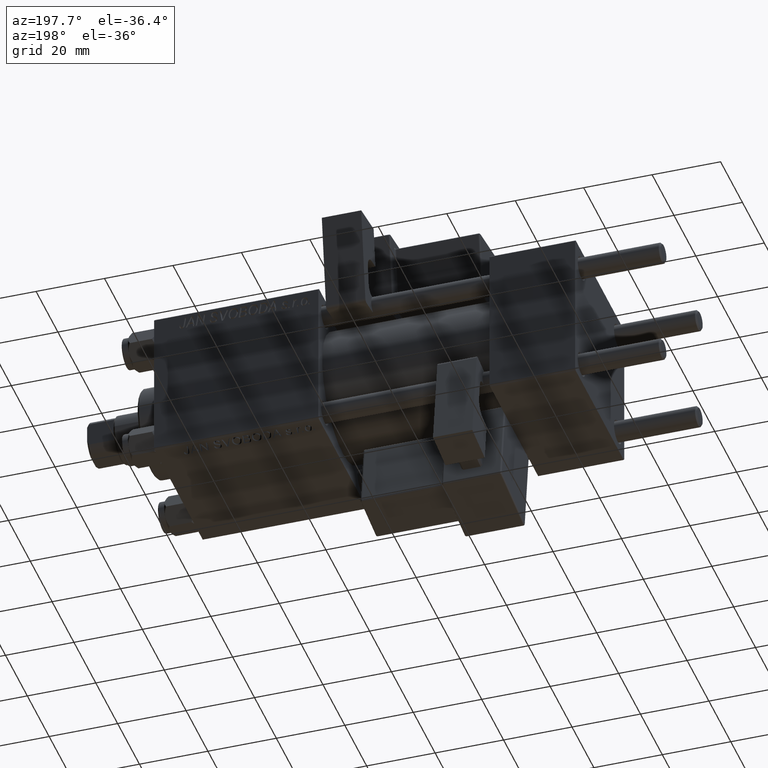
[diagram: clean part render]
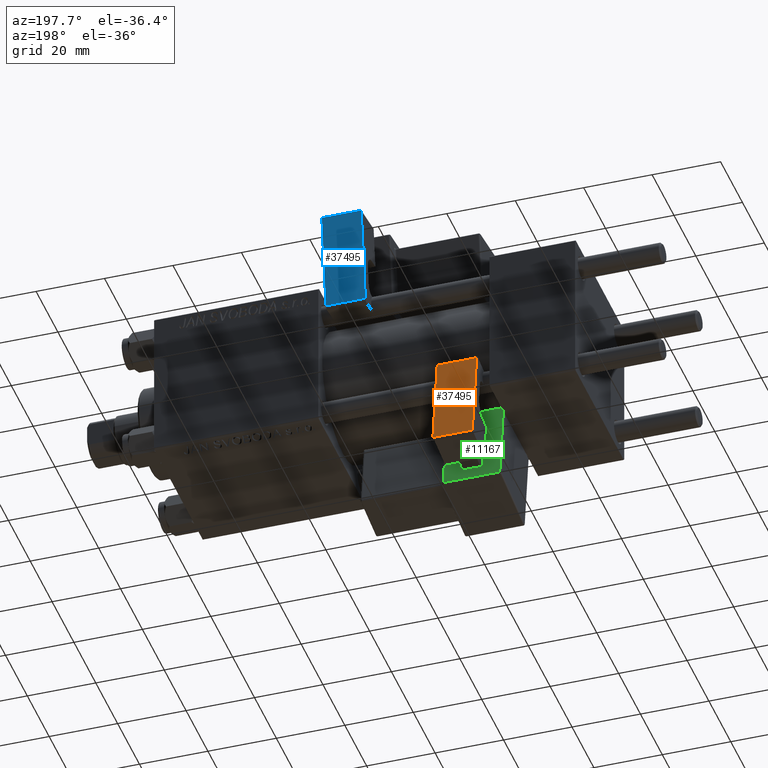
[diagram: same view with three faces highlighted in distinct colors, each labeled with its STEP entity id]
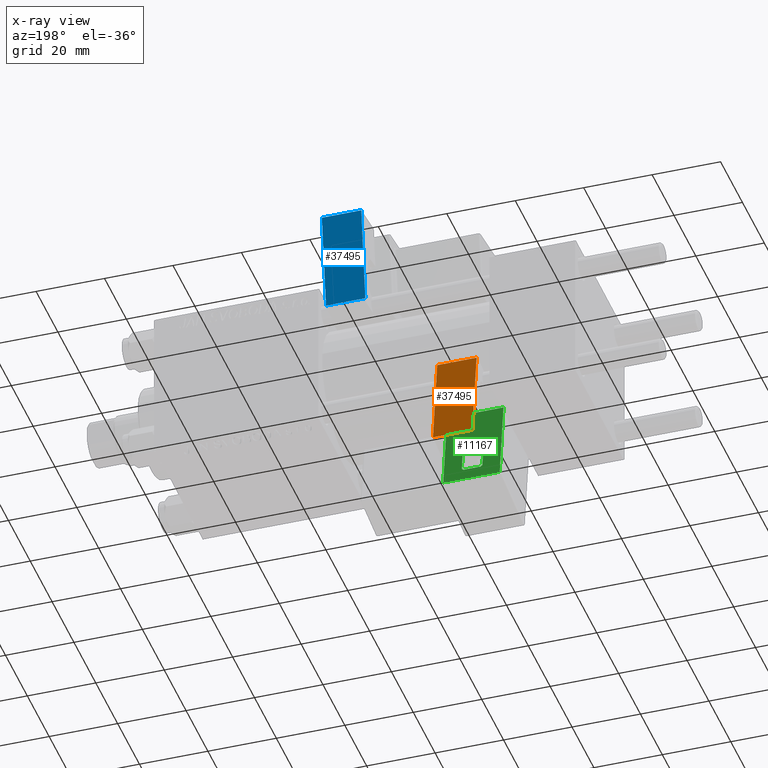
[diagram: x-ray of the same camera — body ghosted, the three highlighted faces saturated]
A machine part, auxiliary view with three faces highlighted in distinct colors.
The next image is the same camera in x-ray (body ghosted, the three faces saturated) — at least one of them is partly hidden behind the body in this view.
Their STEP definitions:

[orange] entity #37495 — the highlighted planar face has unit normal (0, -0.9902, -0.1399).
#1317 = CARTESIAN_POINT ( 'NONE',  ( 5.750000000000000000, 5.750000000000001776, 0.000000000000000000 ) ) ;
#1498 = VECTOR ( 'NONE', #3507, 1000.000000000000000 ) ;
#1606 = FACE_OUTER_BOUND ( 'NONE', #32012, .T. ) ;
#3507 = DIRECTION ( 'NONE',  ( -0.000000000000000000, -0.000000000000000000, -1.000000000000000000 ) ) ;
#4142 = AXIS2_PLACEMENT_3D ( 'NONE', #21463, #13273, #17498 ) ;
#7374 = CARTESIAN_POINT ( 'NONE',  ( 5.750000000000000000, 5.750000000000001776, 28.00000000000000000 ) ) ;
#8340 = VECTOR ( 'NONE', #41812, 1000.000000000000000 ) ;
#9766 = VERTEX_POINT ( 'NONE', #1317 ) ;
#11489 = LINE ( 'NONE', #40793, #49110 ) ;
#12340 = ORIENTED_EDGE ( 'NONE', *, *, #31610, .T. ) ;
#12569 = EDGE_CURVE ( 'NONE', #28521, #44393, #15475, .T. ) ;
#13273 = DIRECTION ( 'NONE',  ( 1.508455196501571183E-16, -1.000000000000000000, 0.000000000000000000 ) ) ;
#15475 = LINE ( 'NONE', #51432, #25259 ) ;
#17498 = DIRECTION ( 'NONE',  ( 1.000000000000000000, 1.508455196501571183E-16, 0.000000000000000000 ) ) ;
#18615 = CARTESIAN_POINT ( 'NONE',  ( -5.750000000000000000, 5.750000000000000000, 28.00000000000000000 ) ) ;
#21463 = CARTESIAN_POINT ( 'NONE',  ( -5.750000000000000000, 5.750000000000000000, 12.00000000000000000 ) ) ;
#22501 = PLANE ( 'NONE',  #4142 ) ;
#25259 = VECTOR ( 'NONE', #38716, 1000.000000000000000 ) ;
#27845 = LINE ( 'NONE', #51904, #1498 ) ;
#28521 = VERTEX_POINT ( 'NONE', #18615 ) ;
#30647 = CARTESIAN_POINT ( 'NONE',  ( -5.750000000000000000, 5.750000000000000000, 0.000000000000000000 ) ) ;
#31610 = EDGE_CURVE ( 'NONE', #44393, #9766, #27845, .T. ) ;
#31723 = ORIENTED_EDGE ( 'NONE', *, *, #48691, .F. ) ;
#32012 = EDGE_LOOP ( 'NONE', ( #31723, #34811, #12340, #49410 ) ) ;
#33094 = LINE ( 'NONE', #49244, #8340 ) ;
#34811 = ORIENTED_EDGE ( 'NONE', *, *, #12569, .T. ) ;
#37495 = ADVANCED_FACE ( 'NONE', ( #1606 ), #22501, .F. ) ;
#38716 = DIRECTION ( 'NONE',  ( 1.000000000000000000, 1.508455196501571183E-16, -0.000000000000000000 ) ) ;
#40017 = DIRECTION ( 'NONE',  ( -0.000000000000000000, -0.000000000000000000, -1.000000000000000000 ) ) ;
#40793 = CARTESIAN_POINT ( 'NONE',  ( -5.750000000000000000, 5.750000000000000000, 12.00000000000000000 ) ) ;
#41812 = DIRECTION ( 'NONE',  ( -1.000000000000000000, -1.508455196501571429E-16, -0.000000000000000000 ) ) ;
#42309 = EDGE_CURVE ( 'NONE', #9766, #50188, #33094, .T. ) ;
#44393 = VERTEX_POINT ( 'NONE', #7374 ) ;
#48691 = EDGE_CURVE ( 'NONE', #28521, #50188, #11489, .T. ) ;
#49110 = VECTOR ( 'NONE', #40017, 1000.000000000000000 ) ;
#49244 = CARTESIAN_POINT ( 'NONE',  ( -5.750000000000000000, 5.750000000000000000, 0.000000000000000000 ) ) ;
#49410 = ORIENTED_EDGE ( 'NONE', *, *, #42309, .T. ) ;
#50188 = VERTEX_POINT ( 'NONE', #30647 ) ;
#51432 = CARTESIAN_POINT ( 'NONE',  ( -5.750000000000000000, 5.750000000000000000, 28.00000000000000000 ) ) ;
#51904 = CARTESIAN_POINT ( 'NONE',  ( 5.750000000000000000, 5.750000000000001776, 12.00000000000000000 ) ) ;

[blue] entity #37495 — the highlighted planar face has unit normal (-0, -0.9908, 0.1355).
#1317 = CARTESIAN_POINT ( 'NONE',  ( 5.750000000000000000, 5.750000000000001776, 0.000000000000000000 ) ) ;
#1498 = VECTOR ( 'NONE', #3507, 1000.000000000000000 ) ;
#1606 = FACE_OUTER_BOUND ( 'NONE', #32012, .T. ) ;
#3507 = DIRECTION ( 'NONE',  ( -0.000000000000000000, -0.000000000000000000, -1.000000000000000000 ) ) ;
#4142 = AXIS2_PLACEMENT_3D ( 'NONE', #21463, #13273, #17498 ) ;
#7374 = CARTESIAN_POINT ( 'NONE',  ( 5.750000000000000000, 5.750000000000001776, 28.00000000000000000 ) ) ;
#8340 = VECTOR ( 'NONE', #41812, 1000.000000000000000 ) ;
#9766 = VERTEX_POINT ( 'NONE', #1317 ) ;
#11489 = LINE ( 'NONE', #40793, #49110 ) ;
#12340 = ORIENTED_EDGE ( 'NONE', *, *, #31610, .T. ) ;
#12569 = EDGE_CURVE ( 'NONE', #28521, #44393, #15475, .T. ) ;
#13273 = DIRECTION ( 'NONE',  ( 1.508455196501571183E-16, -1.000000000000000000, 0.000000000000000000 ) ) ;
#15475 = LINE ( 'NONE', #51432, #25259 ) ;
#17498 = DIRECTION ( 'NONE',  ( 1.000000000000000000, 1.508455196501571183E-16, 0.000000000000000000 ) ) ;
#18615 = CARTESIAN_POINT ( 'NONE',  ( -5.750000000000000000, 5.750000000000000000, 28.00000000000000000 ) ) ;
#21463 = CARTESIAN_POINT ( 'NONE',  ( -5.750000000000000000, 5.750000000000000000, 12.00000000000000000 ) ) ;
#22501 = PLANE ( 'NONE',  #4142 ) ;
#25259 = VECTOR ( 'NONE', #38716, 1000.000000000000000 ) ;
#27845 = LINE ( 'NONE', #51904, #1498 ) ;
#28521 = VERTEX_POINT ( 'NONE', #18615 ) ;
#30647 = CARTESIAN_POINT ( 'NONE',  ( -5.750000000000000000, 5.750000000000000000, 0.000000000000000000 ) ) ;
#31610 = EDGE_CURVE ( 'NONE', #44393, #9766, #27845, .T. ) ;
#31723 = ORIENTED_EDGE ( 'NONE', *, *, #48691, .F. ) ;
#32012 = EDGE_LOOP ( 'NONE', ( #31723, #34811, #12340, #49410 ) ) ;
#33094 = LINE ( 'NONE', #49244, #8340 ) ;
#34811 = ORIENTED_EDGE ( 'NONE', *, *, #12569, .T. ) ;
#37495 = ADVANCED_FACE ( 'NONE', ( #1606 ), #22501, .F. ) ;
#38716 = DIRECTION ( 'NONE',  ( 1.000000000000000000, 1.508455196501571183E-16, -0.000000000000000000 ) ) ;
#40017 = DIRECTION ( 'NONE',  ( -0.000000000000000000, -0.000000000000000000, -1.000000000000000000 ) ) ;
#40793 = CARTESIAN_POINT ( 'NONE',  ( -5.750000000000000000, 5.750000000000000000, 12.00000000000000000 ) ) ;
#41812 = DIRECTION ( 'NONE',  ( -1.000000000000000000, -1.508455196501571429E-16, -0.000000000000000000 ) ) ;
#42309 = EDGE_CURVE ( 'NONE', #9766, #50188, #33094, .T. ) ;
#44393 = VERTEX_POINT ( 'NONE', #7374 ) ;
#48691 = EDGE_CURVE ( 'NONE', #28521, #50188, #11489, .T. ) ;
#49110 = VECTOR ( 'NONE', #40017, 1000.000000000000000 ) ;
#49244 = CARTESIAN_POINT ( 'NONE',  ( -5.750000000000000000, 5.750000000000000000, 0.000000000000000000 ) ) ;
#49410 = ORIENTED_EDGE ( 'NONE', *, *, #42309, .T. ) ;
#50188 = VERTEX_POINT ( 'NONE', #30647 ) ;
#51432 = CARTESIAN_POINT ( 'NONE',  ( -5.750000000000000000, 5.750000000000000000, 28.00000000000000000 ) ) ;
#51904 = CARTESIAN_POINT ( 'NONE',  ( 5.750000000000000000, 5.750000000000001776, 12.00000000000000000 ) ) ;

[green] entity #11167 — the highlighted planar face has unit normal (0, 0.9902, 0.1399).
#630 = LINE ( 'NONE', #36586, #48958 ) ;
#1637 = FACE_OUTER_BOUND ( 'NONE', #24958, .T. ) ;
#1927 = VECTOR ( 'NONE', #2617, 1000.000000000000000 ) ;
#2363 = ORIENTED_EDGE ( 'NONE', *, *, #32816, .T. ) ;
#2617 = DIRECTION ( 'NONE',  ( 0.000000000000000000, 0.000000000000000000, -1.000000000000000000 ) ) ;
#2764 = VERTEX_POINT ( 'NONE', #19140 ) ;
#2929 = DIRECTION ( 'NONE',  ( 1.000000000000000000, -0.000000000000000000, 7.228014483236695816E-17 ) ) ;
#3438 = CARTESIAN_POINT ( 'NONE',  ( 8.250000000000003553, -11.75000000000000000, -0.5000000000000002220 ) ) ;
#3843 = VECTOR ( 'NONE', #45547, 1000.000000000000000 ) ;
#3912 = DIRECTION ( 'NONE',  ( 0.7071067811865474617, -0.000000000000000000, 0.7071067811865474617 ) ) ;
#4256 = LINE ( 'NONE', #43213, #39463 ) ;
#4326 = VECTOR ( 'NONE', #51677, 1000.000000000000000 ) ;
#4399 = EDGE_CURVE ( 'NONE', #25160, #6221, #20711, .T. ) ;
#4856 = VECTOR ( 'NONE', #25194, 1000.000000000000000 ) ;
#5755 = DIRECTION ( 'NONE',  ( 1.000000000000000000, -0.000000000000000000, -1.982541115402065110E-16 ) ) ;
#6221 = VERTEX_POINT ( 'NONE', #44853 ) ;
#6324 = VERTEX_POINT ( 'NONE', #32940 ) ;
#7911 = ORIENTED_EDGE ( 'NONE', *, *, #9661, .T. ) ;
#9041 = CARTESIAN_POINT ( 'NONE',  ( 2.500000000000006661, -11.75000000000000000, 9.000000000000001776 ) ) ;
#9262 = VERTEX_POINT ( 'NONE', #36688 ) ;
#9661 = EDGE_CURVE ( 'NONE', #44975, #32817, #4256, .T. ) ;
#9953 = VECTOR ( 'NONE', #5755, 1000.000000000000000 ) ;
#10277 = EDGE_CURVE ( 'NONE', #10516, #35698, #30593, .T. ) ;
#10369 = DIRECTION ( 'NONE',  ( 0.000000000000000000, 1.000000000000000000, 0.000000000000000000 ) ) ;
#10516 = VERTEX_POINT ( 'NONE', #52010 ) ;
#11096 = LINE ( 'NONE', #27217, #1927 ) ;
#11167 = ADVANCED_FACE ( 'NONE', ( #1637, #22278 ), #38626, .T. ) ;
#11497 = DIRECTION ( 'NONE',  ( 0.7071067811865472397, -0.000000000000000000, -0.7071067811865479058 ) ) ;
#12761 = VERTEX_POINT ( 'NONE', #45572 ) ;
#13826 = CARTESIAN_POINT ( 'NONE',  ( 0.000000000000000000, -11.75000000000000000, 0.000000000000000000 ) ) ;
#14232 = VERTEX_POINT ( 'NONE', #31792 ) ;
#15380 = CARTESIAN_POINT ( 'NONE',  ( -2.499999999999976907, -11.75000000000000000, 3.000000000000000444 ) ) ;
#15881 = EDGE_CURVE ( 'NONE', #46066, #44975, #11096, .T. ) ;
#16702 = VECTOR ( 'NONE', #50025, 1000.000000000000000 ) ;
#17426 = ORIENTED_EDGE ( 'NONE', *, *, #24138, .T. ) ;
#17803 = DIRECTION ( 'NONE',  ( 0.000000000000000000, -0.000000000000000000, 1.000000000000000000 ) ) ;
#18039 = LINE ( 'NONE', #33883, #16702 ) ;
#19140 = CARTESIAN_POINT ( 'NONE',  ( 2.500000000000006661, -11.75000000000000000, 9.000000000000001776 ) ) ;
#19913 = ORIENTED_EDGE ( 'NONE', *, *, #33290, .T. ) ;
#19952 = CARTESIAN_POINT ( 'NONE',  ( 8.250000000000003553, -11.75000000000000000, -1.000000000000000888 ) ) ;
#20711 = LINE ( 'NONE', #44758, #3843 ) ;
#21744 = LINE ( 'NONE', #9041, #4856 ) ;
#21791 = VECTOR ( 'NONE', #34926, 1000.000000000000000 ) ;
#22278 = FACE_BOUND ( 'NONE', #29854, .T. ) ;
#23752 = ORIENTED_EDGE ( 'NONE', *, *, #45781, .T. ) ;
#24138 = EDGE_CURVE ( 'NONE', #9262, #14232, #48603, .T. ) ;
#24958 = EDGE_LOOP ( 'NONE', ( #35789, #23752, #25539, #29684 ) ) ;
#25160 = VERTEX_POINT ( 'NONE', #3438 ) ;
#25194 = DIRECTION ( 'NONE',  ( -0.7071067811865426878, -0.000000000000000000, 0.7071067811865524577 ) ) ;
#25539 = ORIENTED_EDGE ( 'NONE', *, *, #10277, .T. ) ;
#27053 = CARTESIAN_POINT ( 'NONE',  ( -3.000000000000000000, -11.75000000000000000, 8.500000000000007105 ) ) ;
#27217 = CARTESIAN_POINT ( 'NONE',  ( -3.000000000000000000, -11.75000000000000000, 9.000000000000001776 ) ) ;
#27872 = LINE ( 'NONE', #19952, #4326 ) ;
#29684 = ORIENTED_EDGE ( 'NONE', *, *, #48586, .T. ) ;
#29854 = EDGE_LOOP ( 'NONE', ( #41444, #19913, #42015, #49193, #37464, #7911, #2363, #17426 ) ) ;
#30593 = LINE ( 'NONE', #45950, #9953 ) ;
#30937 = EDGE_CURVE ( 'NONE', #14232, #12761, #40372, .T. ) ;
#31792 = CARTESIAN_POINT ( 'NONE',  ( 3.000000000000000888, -11.75000000000000000, 3.500000000000008438 ) ) ;
#32816 = EDGE_CURVE ( 'NONE', #32817, #9262, #42854, .T. ) ;
#32817 = VERTEX_POINT ( 'NONE', #15380 ) ;
#32940 = CARTESIAN_POINT ( 'NONE',  ( -2.499999999999999556, -11.75000000000000000, 9.000000000000001776 ) ) ;
#33290 = EDGE_CURVE ( 'NONE', #12761, #2764, #21744, .T. ) ;
#33444 = EDGE_CURVE ( 'NONE', #2764, #6324, #18039, .T. ) ;
#33883 = CARTESIAN_POINT ( 'NONE',  ( 3.000000000000000000, -11.75000000000000000, 9.000000000000001776 ) ) ;
#34406 = VECTOR ( 'NONE', #2929, 1000.000000000000000 ) ;
#34926 = DIRECTION ( 'NONE',  ( -0.7071067811865524577, 0.000000000000000000, -0.7071067811865426878 ) ) ;
#35188 = CARTESIAN_POINT ( 'NONE',  ( -3.000000000000000000, -11.75000000000000000, 8.500000000000007105 ) ) ;
#35698 = VERTEX_POINT ( 'NONE', #36177 ) ;
#35789 = ORIENTED_EDGE ( 'NONE', *, *, #4399, .T. ) ;
#36177 = CARTESIAN_POINT ( 'NONE',  ( 8.250000000000000000, -11.75000000000000000, 24.49999999999999645 ) ) ;
#36586 = CARTESIAN_POINT ( 'NONE',  ( -8.250000000000000000, -11.75000000000000000, 25.00000000000000000 ) ) ;
#36688 = CARTESIAN_POINT ( 'NONE',  ( 2.499999999999993339, -11.75000000000000000, 3.000000000000000888 ) ) ;
#37464 = ORIENTED_EDGE ( 'NONE', *, *, #15881, .T. ) ;
#38626 = PLANE ( 'NONE',  #42061 ) ;
#38669 = VECTOR ( 'NONE', #52030, 1000.000000000000000 ) ;
#39160 = LINE ( 'NONE', #35188, #21791 ) ;
#39333 = CARTESIAN_POINT ( 'NONE',  ( 3.000000000000000000, -11.75000000000000000, 9.000000000000001776 ) ) ;
#39463 = VECTOR ( 'NONE', #11497, 1000.000000000000000 ) ;
#40372 = LINE ( 'NONE', #39333, #38669 ) ;
#40820 = DIRECTION ( 'NONE',  ( 1.334402673828313093E-16, -0.000000000000000000, 1.000000000000000000 ) ) ;
#41444 = ORIENTED_EDGE ( 'NONE', *, *, #30937, .T. ) ;
#41551 = EDGE_CURVE ( 'NONE', #6324, #46066, #39160, .T. ) ;
#42015 = ORIENTED_EDGE ( 'NONE', *, *, #33444, .T. ) ;
#42061 = AXIS2_PLACEMENT_3D ( 'NONE', #13826, #10369, #17803 ) ;
#42854 = LINE ( 'NONE', #47885, #34406 ) ;
#43213 = CARTESIAN_POINT ( 'NONE',  ( -2.499999999999978684, -11.75000000000000000, 3.000000000000000444 ) ) ;
#44758 = CARTESIAN_POINT ( 'NONE',  ( -8.750000000000003553, -11.75000000000000000, -0.5000000000000002220 ) ) ;
#44853 = CARTESIAN_POINT ( 'NONE',  ( -8.250000000000003553, -11.75000000000000000, -0.5000000000000002220 ) ) ;
#44975 = VERTEX_POINT ( 'NONE', #46342 ) ;
#45547 = DIRECTION ( 'NONE',  ( -1.000000000000000000, 0.000000000000000000, -0.000000000000000000 ) ) ;
#45572 = CARTESIAN_POINT ( 'NONE',  ( 3.000000000000000000, -11.75000000000000000, 8.500000000000000000 ) ) ;
#45781 = EDGE_CURVE ( 'NONE', #6221, #10516, #630, .T. ) ;
#45950 = CARTESIAN_POINT ( 'NONE',  ( 8.750000000000000000, -11.75000000000000000, 24.49999999999999645 ) ) ;
#46066 = VERTEX_POINT ( 'NONE', #27053 ) ;
#46342 = CARTESIAN_POINT ( 'NONE',  ( -3.000000000000000000, -11.75000000000000000, 3.500000000000022204 ) ) ;
#47885 = CARTESIAN_POINT ( 'NONE',  ( 3.000000000000000888, -11.75000000000000000, 3.000000000000000888 ) ) ;
#48339 = CARTESIAN_POINT ( 'NONE',  ( 3.000000000000000888, -11.75000000000000000, 3.500000000000008438 ) ) ;
#48586 = EDGE_CURVE ( 'NONE', #35698, #25160, #27872, .T. ) ;
#48603 = LINE ( 'NONE', #48339, #51914 ) ;
#48958 = VECTOR ( 'NONE', #40820, 1000.000000000000000 ) ;
#49193 = ORIENTED_EDGE ( 'NONE', *, *, #41551, .T. ) ;
#50025 = DIRECTION ( 'NONE',  ( -1.000000000000000000, 0.000000000000000000, 0.000000000000000000 ) ) ;
#51677 = DIRECTION ( 'NONE',  ( 1.334402673828313339E-16, -0.000000000000000000, -1.000000000000000000 ) ) ;
#51914 = VECTOR ( 'NONE', #3912, 1000.000000000000114 ) ;
#52010 = CARTESIAN_POINT ( 'NONE',  ( -8.250000000000000000, -11.75000000000000000, 24.50000000000000000 ) ) ;
#52030 = DIRECTION ( 'NONE',  ( -1.445602896647339163E-16, -0.000000000000000000, 1.000000000000000000 ) ) ;